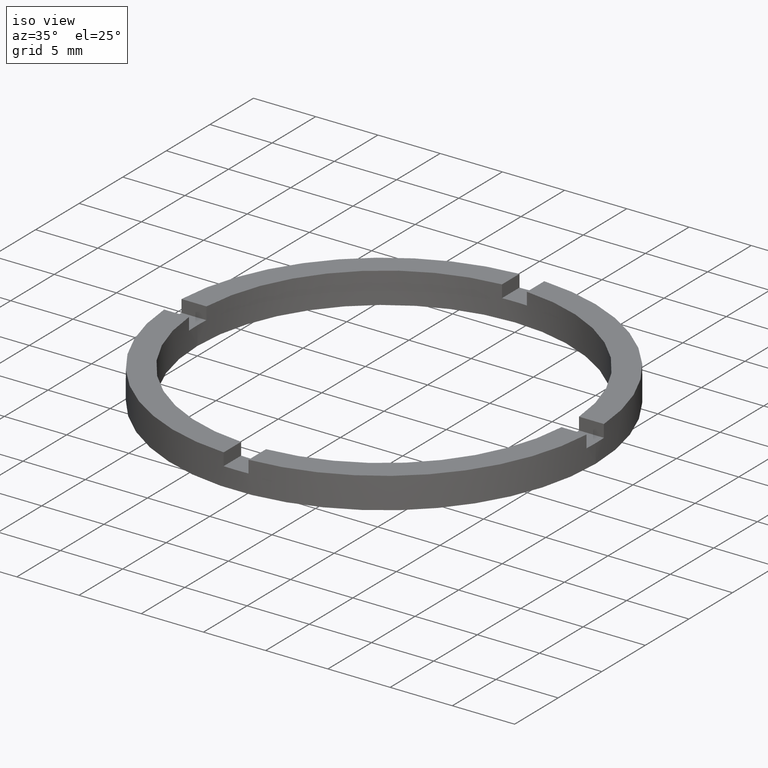
[diagram: clean part render]
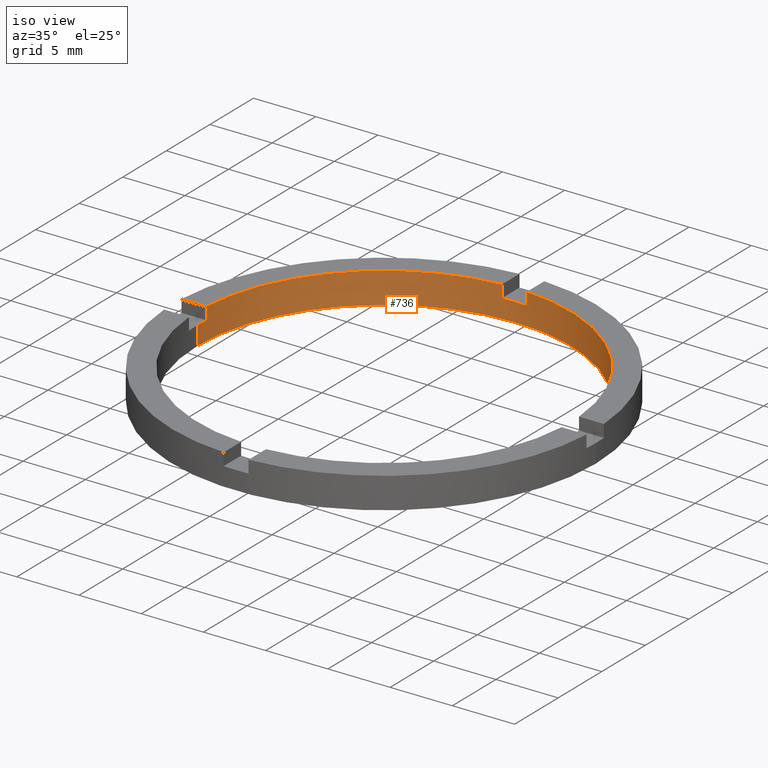
[diagram: same view with one face highlighted and labeled with its STEP entity id]
A machine part, iso view. The second image highlights one B-rep face of the part: STEP entity #736.
In plain terms, the highlighted cylindrical surface (partial cylindrical patch) has radius 15 mm, axis along (-0, -0, -1).
Its self-contained STEP definition (entity closure, byte-faithful):
#6 = DIRECTION ( 'NONE',  ( 1.000000000000000000, 0.000000000000000000, 0.000000000000000000 ) ) ;
#13 = DIRECTION ( 'NONE',  ( 0.000000000000000000, 0.000000000000000000, 1.000000000000000000 ) ) ;
#16 = VERTEX_POINT ( 'NONE', #727 ) ;
#19 = ORIENTED_EDGE ( 'NONE', *, *, #105, .F. ) ;
#32 = AXIS2_PLACEMENT_3D ( 'NONE', #225, #332, #471 ) ;
#43 = ORIENTED_EDGE ( 'NONE', *, *, #208, .F. ) ;
#44 = VERTEX_POINT ( 'NONE', #529 ) ;
#46 = ORIENTED_EDGE ( 'NONE', *, *, #749, .F. ) ;
#59 = DIRECTION ( 'NONE',  ( 0.000000000000000000, 0.000000000000000000, 1.000000000000000000 ) ) ;
#80 = CARTESIAN_POINT ( 'NONE',  ( 0.9999999999999749090, 14.96662954709576709, 1.500000000000000000 ) ) ;
#89 = VERTEX_POINT ( 'NONE', #80 ) ;
#90 = AXIS2_PLACEMENT_3D ( 'NONE', #299, #113, #349 ) ;
#99 = DIRECTION ( 'NONE',  ( 0.000000000000000000, -0.000000000000000000, 1.000000000000000000 ) ) ;
#101 = ORIENTED_EDGE ( 'NONE', *, *, #599, .F. ) ;
#104 = ORIENTED_EDGE ( 'NONE', *, *, #290, .T. ) ;
#105 = EDGE_CURVE ( 'NONE', #271, #611, #167, .T. ) ;
#110 = DIRECTION ( 'NONE',  ( -0.000000000000000000, -0.000000000000000000, -1.000000000000000000 ) ) ;
#113 = DIRECTION ( 'NONE',  ( 0.000000000000000000, 0.000000000000000000, 1.000000000000000000 ) ) ;
#125 = CARTESIAN_POINT ( 'NONE',  ( -14.96662954709576709, 0.9999999999999767963, 2.500000000000000000 ) ) ;
#130 = CARTESIAN_POINT ( 'NONE',  ( -14.96662954709576709, 0.9999999999999767963, 2.500000000000000000 ) ) ;
#131 = CARTESIAN_POINT ( 'NONE',  ( 14.96662954709577775, 0.9999999999998411271, 1.500000000000000000 ) ) ;
#152 = LINE ( 'NONE', #625, #409 ) ;
#160 = VECTOR ( 'NONE', #535, 1000.000000000000000 ) ;
#166 = FACE_OUTER_BOUND ( 'NONE', #622, .T. ) ;
#167 = LINE ( 'NONE', #209, #719 ) ;
#207 = CARTESIAN_POINT ( 'NONE',  ( -1.000000000000025091, 14.96662954709576354, 2.500000000000000000 ) ) ;
#208 = EDGE_CURVE ( 'NONE', #563, #346, #463, .T. ) ;
#209 = CARTESIAN_POINT ( 'NONE',  ( 14.96662954709577775, 0.9999999999998411271, 2.500000000000000000 ) ) ;
#215 = CIRCLE ( 'NONE', #568, 15.00000000000000000 ) ;
#218 = LINE ( 'NONE', #539, #743 ) ;
#225 = CARTESIAN_POINT ( 'NONE',  ( 0.000000000000000000, 0.000000000000000000, 2.500000000000000000 ) ) ;
#241 = CARTESIAN_POINT ( 'NONE',  ( -1.000000000000025091, 14.96662954709576354, 2.500000000000000000 ) ) ;
#253 = EDGE_CURVE ( 'NONE', #563, #425, #690, .T. ) ;
#256 = EDGE_CURVE ( 'NONE', #89, #44, #453, .T. ) ;
#264 = DIRECTION ( 'NONE',  ( 0.000000000000000000, 0.000000000000000000, 1.000000000000000000 ) ) ;
#271 = VERTEX_POINT ( 'NONE', #729 ) ;
#282 = VERTEX_POINT ( 'NONE', #241 ) ;
#284 = DIRECTION ( 'NONE',  ( 1.000000000000000000, 0.000000000000000000, 0.000000000000000000 ) ) ;
#290 = EDGE_CURVE ( 'NONE', #648, #611, #712, .T. ) ;
#291 = VERTEX_POINT ( 'NONE', #422 ) ;
#299 = CARTESIAN_POINT ( 'NONE',  ( 0.000000000000000000, 0.000000000000000000, 1.500000000000000000 ) ) ;
#311 = AXIS2_PLACEMENT_3D ( 'NONE', #626, #317, #699 ) ;
#312 = CARTESIAN_POINT ( 'NONE',  ( 0.000000000000000000, 0.000000000000000000, 2.500000000000000000 ) ) ;
#317 = DIRECTION ( 'NONE',  ( 0.000000000000000000, 0.000000000000000000, 1.000000000000000000 ) ) ;
#325 = EDGE_CURVE ( 'NONE', #271, #291, #473, .T. ) ;
#332 = DIRECTION ( 'NONE',  ( -0.000000000000000000, -0.000000000000000000, -1.000000000000000000 ) ) ;
#346 = VERTEX_POINT ( 'NONE', #130 ) ;
#347 = ORIENTED_EDGE ( 'NONE', *, *, #739, .F. ) ;
#349 = DIRECTION ( 'NONE',  ( 1.000000000000000000, 0.000000000000000000, 0.000000000000000000 ) ) ;
#359 = ORIENTED_EDGE ( 'NONE', *, *, #404, .T. ) ;
#362 = DIRECTION ( 'NONE',  ( -0.000000000000000000, -0.000000000000000000, -1.000000000000000000 ) ) ;
#364 = ORIENTED_EDGE ( 'NONE', *, *, #391, .T. ) ;
#391 = EDGE_CURVE ( 'NONE', #282, #346, #215, .T. ) ;
#396 = CARTESIAN_POINT ( 'NONE',  ( 15.00000000000000000, 1.836970198721029589E-15, 2.500000000000000000 ) ) ;
#404 = EDGE_CURVE ( 'NONE', #425, #613, #218, .T. ) ;
#409 = VECTOR ( 'NONE', #264, 1000.000000000000000 ) ;
#410 = CARTESIAN_POINT ( 'NONE',  ( 0.000000000000000000, 0.000000000000000000, 1.500000000000000000 ) ) ;
#422 = CARTESIAN_POINT ( 'NONE',  ( 0.9999999999999749090, 14.96662954709576709, 2.500000000000000000 ) ) ;
#424 = VECTOR ( 'NONE', #13, 1000.000000000000000 ) ;
#425 = VERTEX_POINT ( 'NONE', #662 ) ;
#426 = CIRCLE ( 'NONE', #311, 15.00000000000000000 ) ;
#429 = LINE ( 'NONE', #396, #160 ) ;
#439 = VECTOR ( 'NONE', #362, 1000.000000000000000 ) ;
#453 = CIRCLE ( 'NONE', #475, 15.00000000000000000 ) ;
#459 = DIRECTION ( 'NONE',  ( 0.000000000000000000, 0.000000000000000000, 1.000000000000000000 ) ) ;
#463 = LINE ( 'NONE', #125, #424 ) ;
#471 = DIRECTION ( 'NONE',  ( -1.000000000000000000, 0.000000000000000000, 0.000000000000000000 ) ) ;
#473 = CIRCLE ( 'NONE', #605, 15.00000000000000000 ) ;
#475 = AXIS2_PLACEMENT_3D ( 'NONE', #663, #99, #602 ) ;
#489 = DIRECTION ( 'NONE',  ( 1.000000000000000000, 0.000000000000000000, 0.000000000000000000 ) ) ;
#523 = CARTESIAN_POINT ( 'NONE',  ( -14.96662954709576709, 0.9999999999999767963, 1.500000000000000000 ) ) ;
#526 = DIRECTION ( 'NONE',  ( -0.000000000000000000, -0.000000000000000000, -1.000000000000000000 ) ) ;
#529 = CARTESIAN_POINT ( 'NONE',  ( -1.000000000000025091, 14.96662954709576354, 1.500000000000000000 ) ) ;
#535 = DIRECTION ( 'NONE',  ( -0.000000000000000000, -0.000000000000000000, -1.000000000000000000 ) ) ;
#539 = CARTESIAN_POINT ( 'NONE',  ( -15.00000000000000000, 0.000000000000000000, 2.500000000000000000 ) ) ;
#540 = DIRECTION ( 'NONE',  ( 0.000000000000000000, 0.000000000000000000, 1.000000000000000000 ) ) ;
#543 = ORIENTED_EDGE ( 'NONE', *, *, #621, .F. ) ;
#563 = VERTEX_POINT ( 'NONE', #523 ) ;
#568 = AXIS2_PLACEMENT_3D ( 'NONE', #600, #59, #284 ) ;
#581 = ORIENTED_EDGE ( 'NONE', *, *, #253, .T. ) ;
#599 = EDGE_CURVE ( 'NONE', #89, #291, #152, .T. ) ;
#600 = CARTESIAN_POINT ( 'NONE',  ( 0.000000000000000000, 0.000000000000000000, 2.500000000000000000 ) ) ;
#602 = DIRECTION ( 'NONE',  ( 1.000000000000000000, 0.000000000000000000, 0.000000000000000000 ) ) ;
#605 = AXIS2_PLACEMENT_3D ( 'NONE', #312, #459, #6 ) ;
#611 = VERTEX_POINT ( 'NONE', #131 ) ;
#613 = VERTEX_POINT ( 'NONE', #698 ) ;
#621 = EDGE_CURVE ( 'NONE', #282, #44, #679, .T. ) ;
#622 = EDGE_LOOP ( 'NONE', ( #347, #104, #19, #632, #101, #635, #543, #364, #43, #581, #359, #46 ) ) ;
#625 = CARTESIAN_POINT ( 'NONE',  ( 0.9999999999999749090, 14.96662954709576709, 2.500000000000000000 ) ) ;
#626 = CARTESIAN_POINT ( 'NONE',  ( 0.000000000000000000, 0.000000000000000000, 0.000000000000000000 ) ) ;
#632 = ORIENTED_EDGE ( 'NONE', *, *, #325, .T. ) ;
#635 = ORIENTED_EDGE ( 'NONE', *, *, #256, .T. ) ;
#640 = AXIS2_PLACEMENT_3D ( 'NONE', #410, #540, #489 ) ;
#648 = VERTEX_POINT ( 'NONE', #675 ) ;
#662 = CARTESIAN_POINT ( 'NONE',  ( -15.00000000000000000, 0.000000000000000000, 1.500000000000000000 ) ) ;
#663 = CARTESIAN_POINT ( 'NONE',  ( 0.000000000000000000, 0.000000000000000000, 1.500000000000000000 ) ) ;
#667 = CYLINDRICAL_SURFACE ( 'NONE', #32, 15.00000000000000000 ) ;
#675 = CARTESIAN_POINT ( 'NONE',  ( 15.00000000000000000, 1.836970198721029589E-15, 1.500000000000000000 ) ) ;
#679 = LINE ( 'NONE', #207, #439 ) ;
#690 = CIRCLE ( 'NONE', #640, 15.00000000000000000 ) ;
#698 = CARTESIAN_POINT ( 'NONE',  ( -15.00000000000000000, 0.000000000000000000, 0.000000000000000000 ) ) ;
#699 = DIRECTION ( 'NONE',  ( 1.000000000000000000, 0.000000000000000000, 0.000000000000000000 ) ) ;
#712 = CIRCLE ( 'NONE', #90, 15.00000000000000000 ) ;
#719 = VECTOR ( 'NONE', #526, 1000.000000000000000 ) ;
#727 = CARTESIAN_POINT ( 'NONE',  ( 15.00000000000000000, 1.836970198721029589E-15, 0.000000000000000000 ) ) ;
#729 = CARTESIAN_POINT ( 'NONE',  ( 14.96662954709577775, 0.9999999999998411271, 2.500000000000000000 ) ) ;
#736 = ADVANCED_FACE ( 'NONE', ( #166 ), #667, .F. ) ;
#739 = EDGE_CURVE ( 'NONE', #648, #16, #429, .T. ) ;
#743 = VECTOR ( 'NONE', #110, 1000.000000000000000 ) ;
#749 = EDGE_CURVE ( 'NONE', #16, #613, #426, .T. ) ;